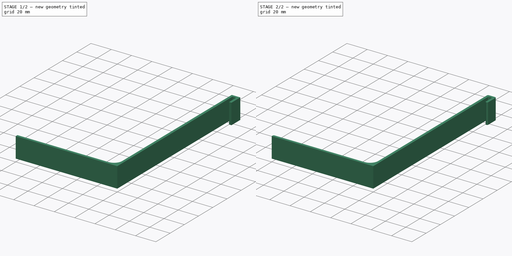
[diagram: build sequence overview — one tinted view per stage of 2, left to right]
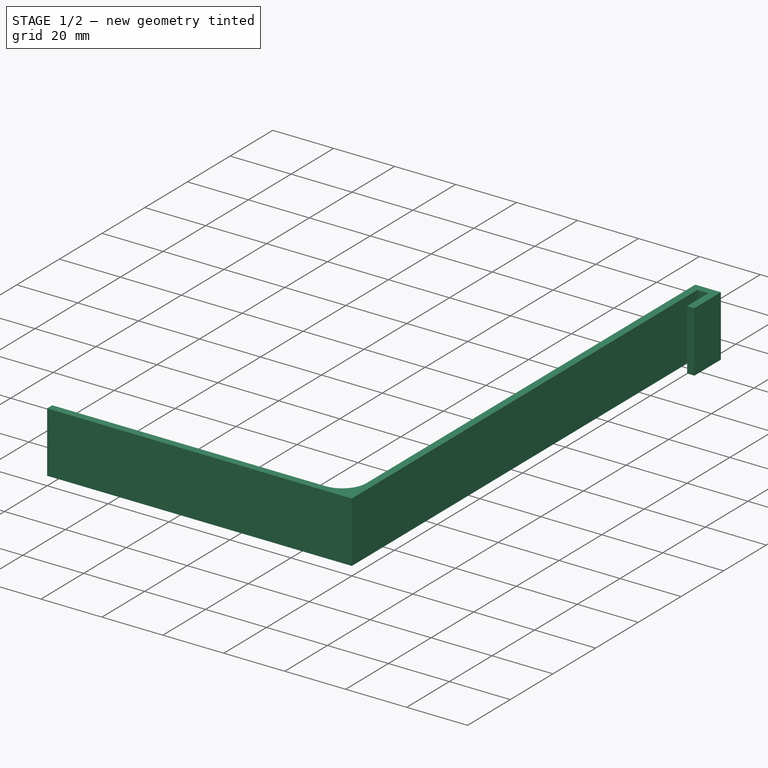
[diagram: stage 1 of 2 — iso view after this stage's code; geometry added in this stage tinted green]
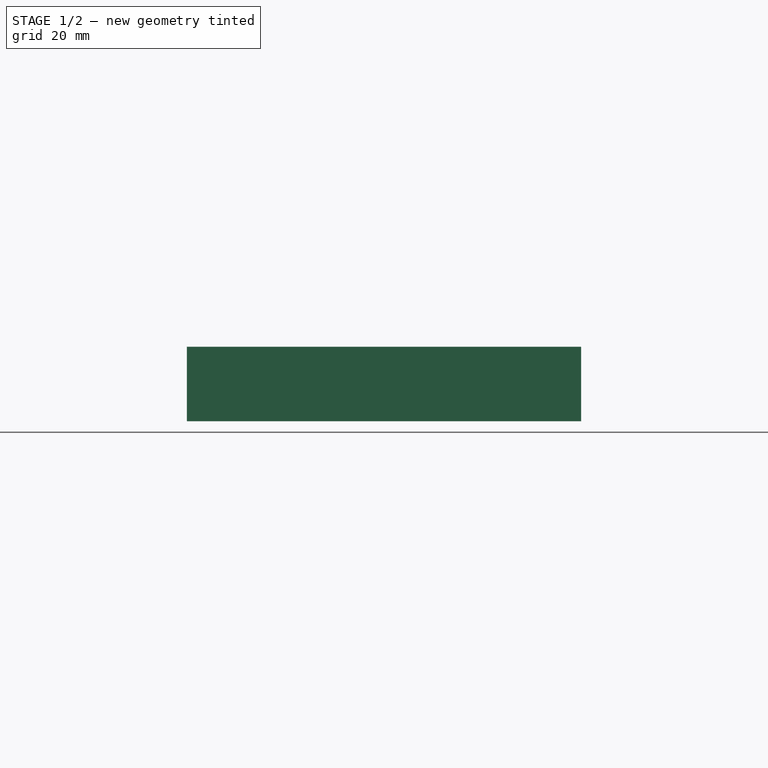
[diagram: stage 1 of 2 — front view after this stage's code; geometry added in this stage tinted green]
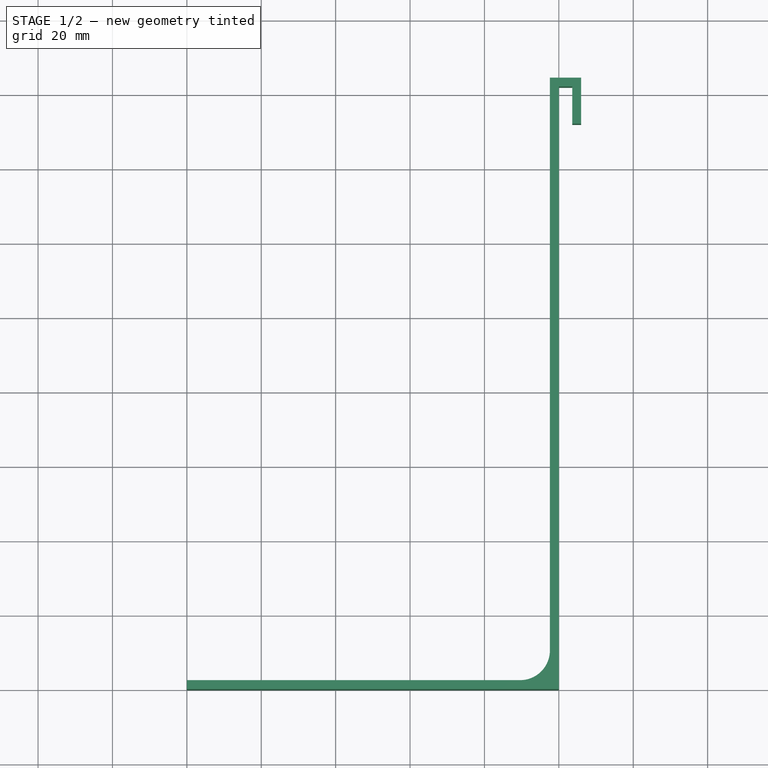
[diagram: stage 1 of 2 — top view after this stage's code; geometry added in this stage tinted green]
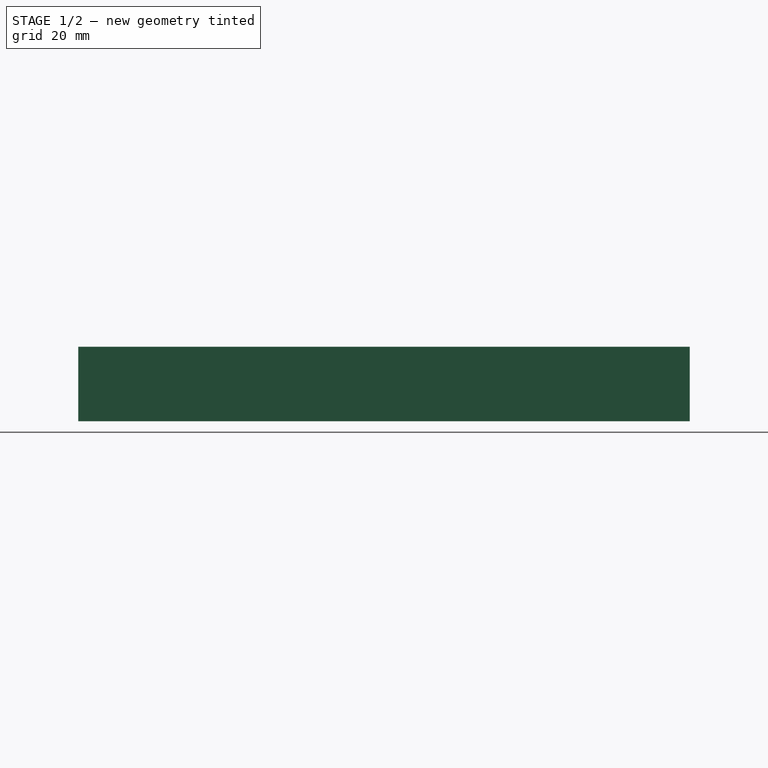
[diagram: stage 1 of 2 — right view after this stage's code; geometry added in this stage tinted green]
FCSTD DOCUMENT  (FreeCAD 0.17R13541 (Git))
Label: DrawerBackSupport
License: All rights reserved
LicenseURL: http://en.wikipedia.org/wiki/All_rights_reserved
objects: Sketcher::SketchObject×1, PartDesign::Pad×1, PartDesign::Fillet×1, PartDesign::Body×1, App::Part×1
note: 5 computed .brp shape members not serialized (recipe doc carries the construction recipe); baked Part::Feature solids carry a one-line shape summary decoded from their .brp

FEATURE [Sketcher::SketchObject] Sketch
  MapMode = 5
  Support = -> [XY_Plane001]
  sketch-geometry (13):
    g0: LineSegment StartX=-100 StartY=0 StartZ=0 EndX=0 EndY=0 EndZ=0
    g1: LineSegment StartX=0 StartY=0 StartZ=0 EndX=0 EndY=162 EndZ=0
    g2: LineSegment [constr] StartX=0 StartY=162 StartZ=0 EndX=-2.4 EndY=162 EndZ=0
    g3: LineSegment StartX=-2.4 StartY=164.4 StartZ=0 EndX=-2.4 EndY=10.4 EndZ=0
    g4: LineSegment StartX=-10.4 StartY=2.4 StartZ=0 EndX=-100 EndY=2.4 EndZ=0
    g5: LineSegment StartX=-100 StartY=2.4 StartZ=0 EndX=-100 EndY=0 EndZ=0
    g6: ArcOfCircle CenterX=-10.4 CenterY=10.4 CenterZ=0 NormalX=0 NormalY=0 NormalZ=1 AngleXU=0 Radius=8 StartAngle=4.71239 EndAngle=6.28319
    g7: LineSegment StartX=-2.4 StartY=164.4 StartZ=0 EndX=6 EndY=164.4 EndZ=0
    g8: LineSegment StartX=6 StartY=164.4 StartZ=0 EndX=6 EndY=152 EndZ=0
    g9: LineSegment StartX=6 StartY=152 StartZ=0 EndX=3.6 EndY=152 EndZ=0
    g10: LineSegment StartX=3.6 StartY=152 StartZ=0 EndX=3.6 EndY=162 EndZ=0
    g11: LineSegment StartX=3.6 StartY=162 StartZ=0 EndX=0 EndY=162 EndZ=0
    g12: LineSegment [constr] StartX=3.6 StartY=162 StartZ=0 EndX=3.6 EndY=164.4 EndZ=0
  constraints (37):
    c: Horizontal(g0)
    c: Coincident(g0,g1)
    c: Vertical(g1)
    c: Coincident(g1,g2)
    c: Horizontal(g2)
    c: Vertical(g3)
    c: Horizontal(g4)
    c: Coincident(g4,g5)
    c: Coincident(g5,g0)
    c: Vertical(g5)
    c: Equal(g5,g2)
    c: DistanceX(g0,g0) = 100
    c: DistanceY(g1,g1) = 162
    c: DistanceY(g5,g5) = 2.4  'Thickness'
    c: Tangent(g3,g6) = 1.5708
    c: Tangent(g4,g6) = 1.5708
    c: Radius(g6) = 8
    c: Coincident(g0,g-1)
    c: PointOnObject(g2,g3)
    c: Coincident(g3,g7)
    c: Horizontal(g7)
    c: Coincident(g7,g8)
    c: Vertical(g8)
    c: Coincident(g8,g9)
    c: Horizontal(g9)
    c: Coincident(g9,g10)
    c: Vertical(g10)
    c: Coincident(g10,g11)
    c: Coincident(g11,g1)
    c: Horizontal(g11)
    c: Equal(g2,g9)
    c: Coincident(g12,g10)
    c: PointOnObject(g12,g7)
    c: Vertical(g12)
    c: Equal(g9,g12)
    c: DistanceX(g1,g9) = 3.6
    c: DistanceY(g8,g10) = 10
FEATURE [PartDesign::Pad] Pad
  Length = 20
  Length2 = 100
  Profile = -> Sketch
  Type = 0
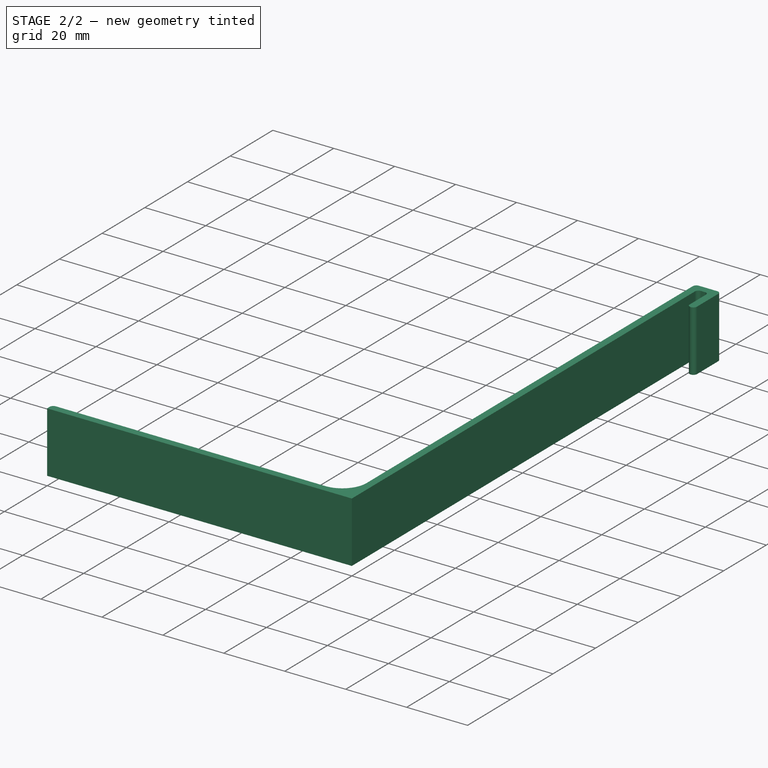
[diagram: stage 2 of 2 — iso view after this stage's code; geometry added in this stage tinted green]
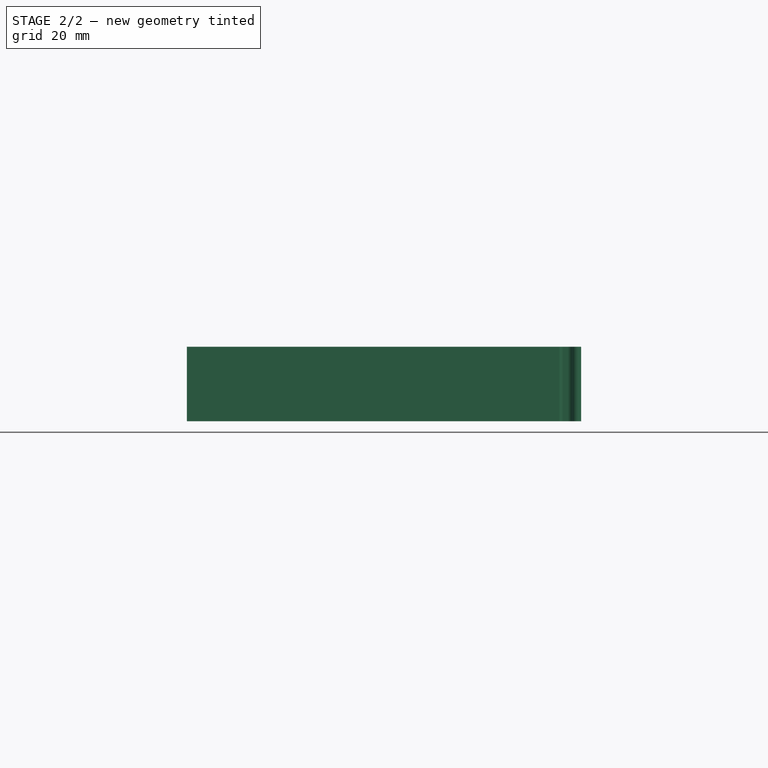
[diagram: stage 2 of 2 — front view after this stage's code; geometry added in this stage tinted green]
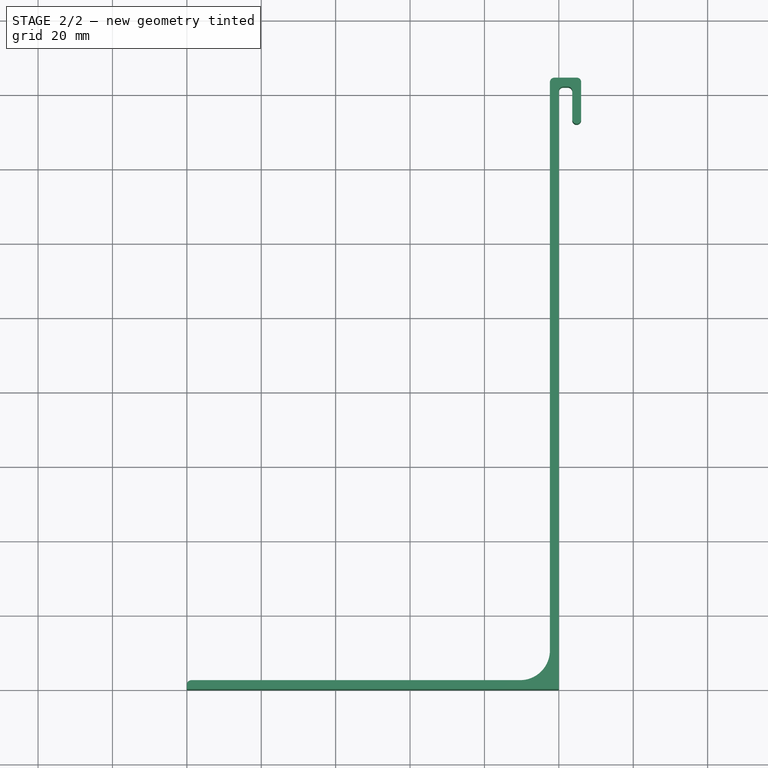
[diagram: stage 2 of 2 — top view after this stage's code; geometry added in this stage tinted green]
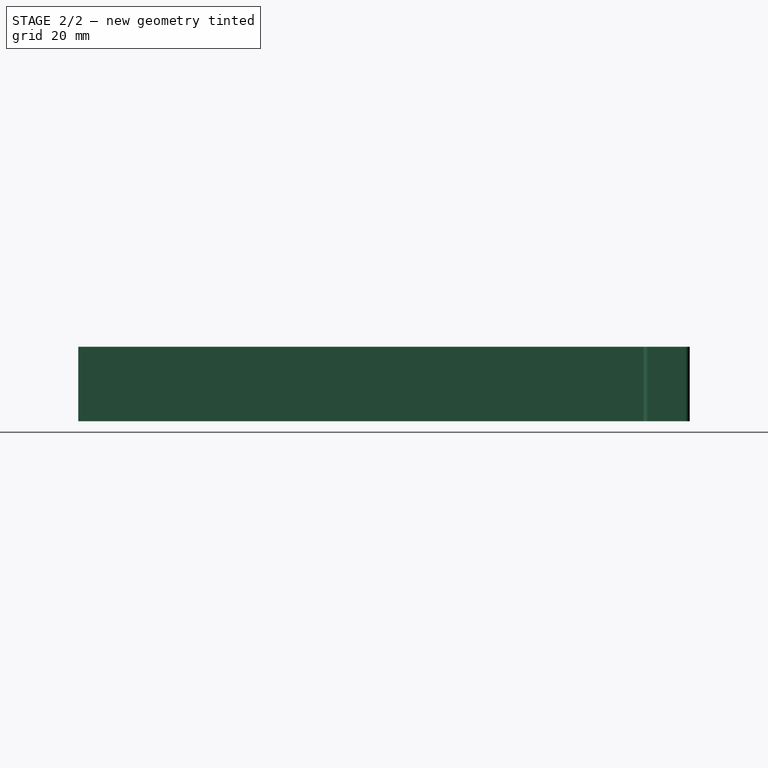
[diagram: stage 2 of 2 — right view after this stage's code; geometry added in this stage tinted green]
FEATURE [PartDesign::Fillet] Fillet
  Base = -> Pad [Edge11,Edge23,Edge14,Edge26,Edge17,Edge20,Edge2]
  BaseFeature = -> Pad
  Radius = 1.19
FEATURE [PartDesign::Body] Body
  Group = -> [Sketch,Pad,Fillet]
  Origin = -> Origin001
  Tip = -> Fillet
FEATURE [App::Part] Part
  Group = -> [Body]
  License = CC BY 3.0
  LicenseURL = http://creativecommons.org/licenses/by/3.0/
  Origin = -> Origin
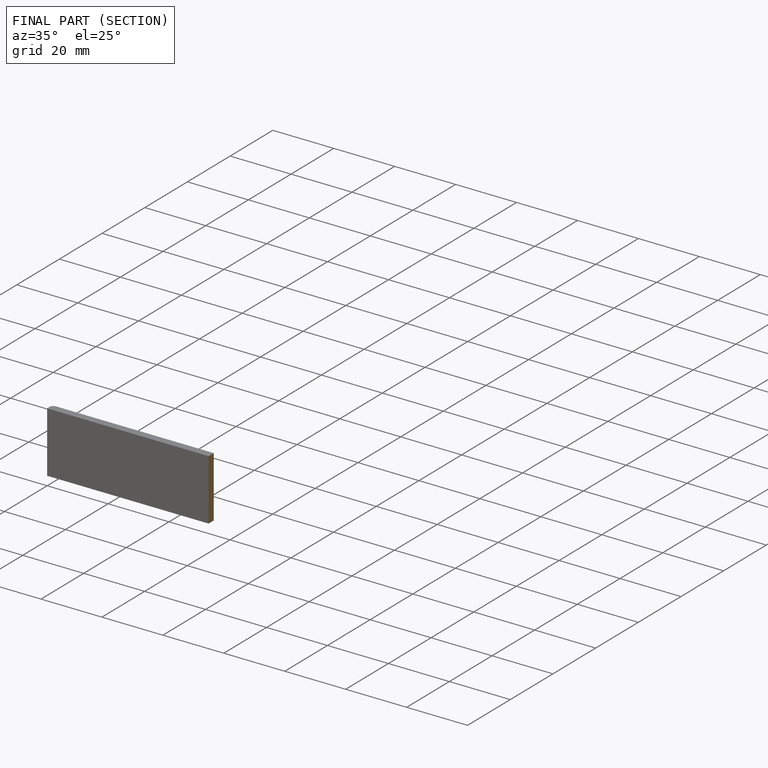
[diagram: finished part — half-section view (interior)]
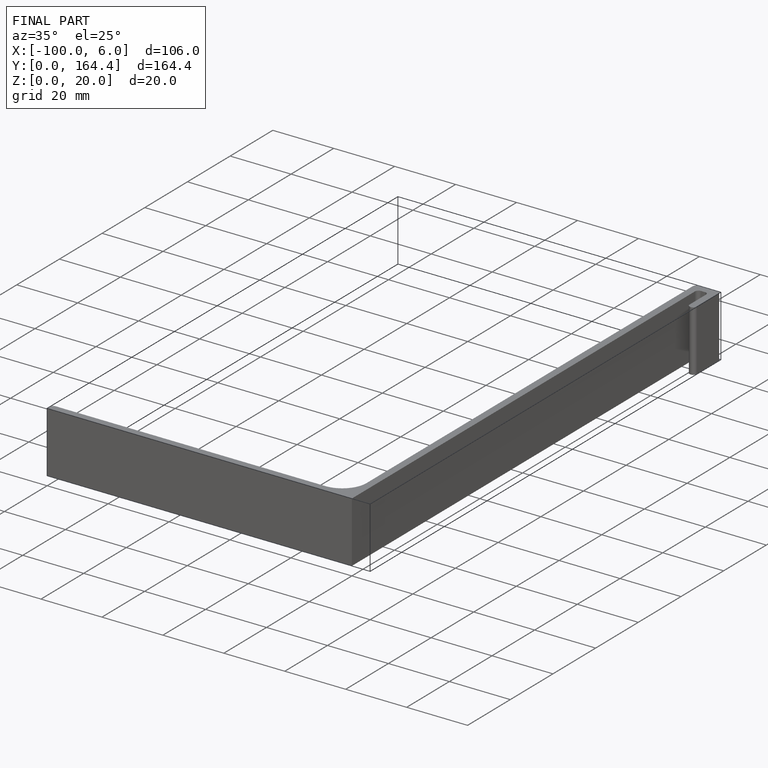
[diagram: finished part — iso view with bounding-box wireframe]
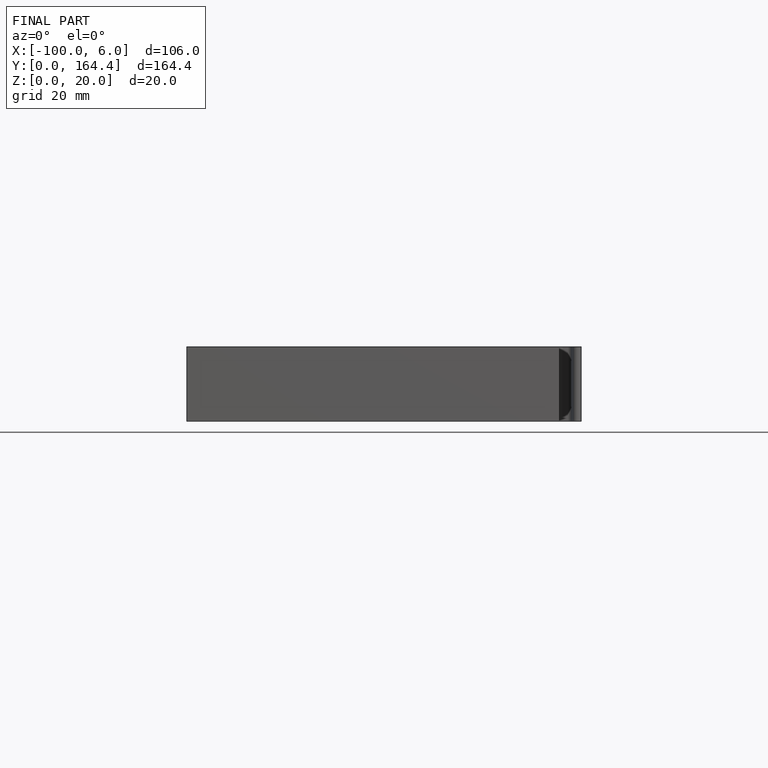
[diagram: finished part — front view with bounding-box wireframe]
